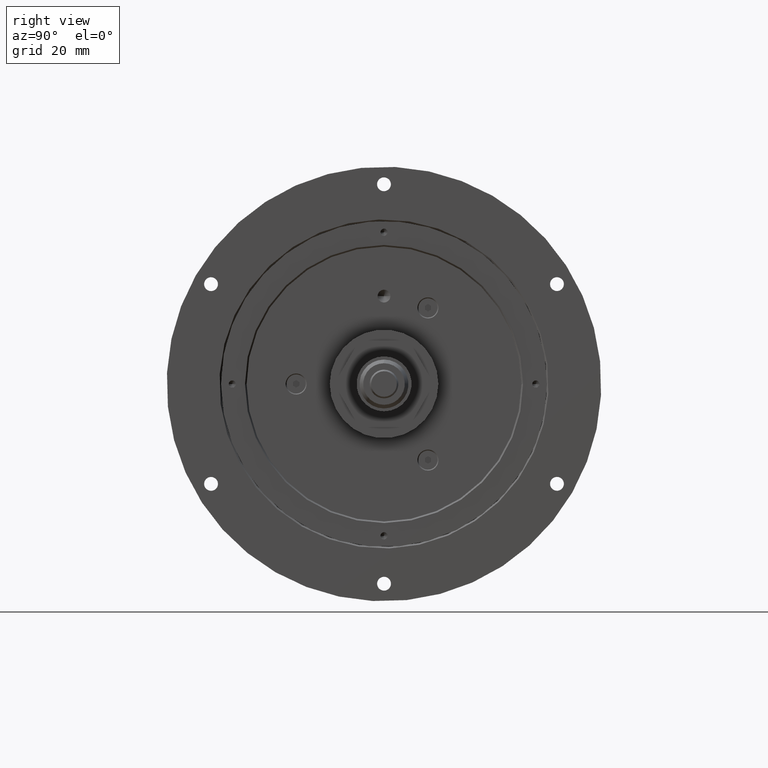
[diagram: clean part render]
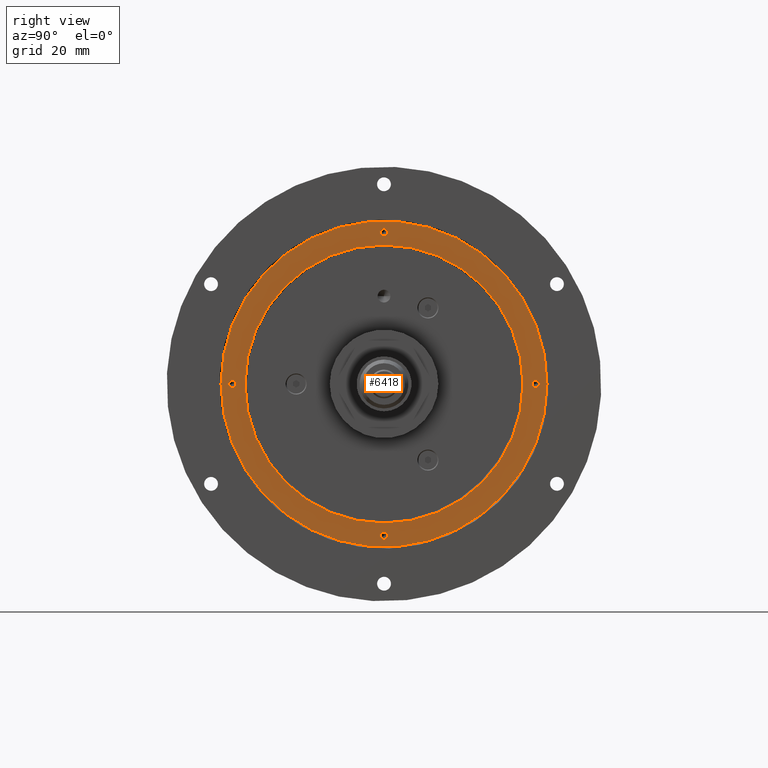
[diagram: same view with one face highlighted and labeled with its STEP entity id]
A machine part, right view. The second image highlights one B-rep face of the part: STEP entity #6418.
In plain terms, the highlighted planar face has unit normal (1, 0, -0).
Its self-contained STEP definition (entity closure, byte-faithful):
#5880=CARTESIAN_POINT('',(2.750000000000000,32.500000000000000,0.0));
#5881=VERTEX_POINT('',#5880);
#5890=CARTESIAN_POINT('',(2.750000000000012,-54.500000000000000,-5.327038E-015));
#5891=VERTEX_POINT('',#5890);
#5892=CARTESIAN_POINT('',(2.750000000000005,-11.0,0.0));
#5893=DIRECTION('',(1.0,0.0,0.0));
#5894=DIRECTION('',(0.0,1.0,0.0));
#5895=AXIS2_PLACEMENT_3D('',#5892,#5893,#5894);
#5896=CIRCLE('',#5895,43.500000000000000);
#5897=EDGE_CURVE('',#5881,#5891,#5896,.T.);
#5922=CARTESIAN_POINT('',(2.750000000000000,40.0,0.0));
#5923=VERTEX_POINT('',#5922);
#5932=CARTESIAN_POINT('',(2.750000000000012,-62.0,-6.245492E-015));
#5933=VERTEX_POINT('',#5932);
#5934=CARTESIAN_POINT('',(2.750000000000006,-11.0,0.0));
#5935=DIRECTION('',(1.0,0.0,0.0));
#5936=DIRECTION('',(0.0,1.0,0.0));
#5937=AXIS2_PLACEMENT_3D('',#5934,#5935,#5936);
#5938=CIRCLE('',#5937,51.0);
#5939=EDGE_CURVE('',#5933,#5923,#5938,.T.);
#5964=CARTESIAN_POINT('',(2.750000000000021,-10.999999999999993,46.400000000349998));
#5965=VERTEX_POINT('',#5964);
#5974=CARTESIAN_POINT('',(2.750000000000005,-10.999999999999993,48.599999999650002));
#5975=VERTEX_POINT('',#5974);
#5976=CARTESIAN_POINT('',(2.750000000000005,-10.999999999999993,47.500000000000000));
#5977=DIRECTION('',(-1.0,0.0,0.0));
#5978=DIRECTION('',(0.0,0.0,-1.0));
#5979=AXIS2_PLACEMENT_3D('',#5976,#5977,#5978);
#5980=CIRCLE('',#5979,1.099999999650000);
#5981=EDGE_CURVE('',#5975,#5965,#5980,.T.);
#6029=CARTESIAN_POINT('',(2.750000000000016,35.400000000349998,-3.620067E-015));
#6030=VERTEX_POINT('',#6029);
#6039=CARTESIAN_POINT('',(2.750000000000000,37.599999999650002,-3.620067E-015));
#6040=VERTEX_POINT('',#6039);
#6041=CARTESIAN_POINT('',(2.750000000000000,36.500000000000000,-3.552714E-015));
#6042=DIRECTION('',(-1.0,0.0,0.0));
#6043=DIRECTION('',(0.0,-1.0,0.0));
#6044=AXIS2_PLACEMENT_3D('',#6041,#6042,#6043);
#6045=CIRCLE('',#6044,1.099999999650000);
#6046=EDGE_CURVE('',#6040,#6030,#6045,.T.);
#6094=CARTESIAN_POINT('',(2.750000000000021,-11.000000000000002,-46.400000000349998));
#6095=VERTEX_POINT('',#6094);
#6104=CARTESIAN_POINT('',(2.750000000000005,-11.000000000000002,-48.599999999650002));
#6105=VERTEX_POINT('',#6104);
#6106=CARTESIAN_POINT('',(2.750000000000005,-11.000000000000002,-47.500000000000000));
#6107=DIRECTION('',(-1.0,0.0,0.0));
#6108=DIRECTION('',(0.0,0.0,1.0));
#6109=AXIS2_PLACEMENT_3D('',#6106,#6107,#6108);
#6110=CIRCLE('',#6109,1.099999999650000);
#6111=EDGE_CURVE('',#6105,#6095,#6110,.T.);
#6159=CARTESIAN_POINT('',(2.750000000000027,-57.400000000349998,-1.574297E-015));
#6160=VERTEX_POINT('',#6159);
#6169=CARTESIAN_POINT('',(2.750000000000000,-59.599999999650002,-1.843710E-015));
#6170=VERTEX_POINT('',#6169);
#6171=CARTESIAN_POINT('',(2.750000000000000,-58.500000000000000,-1.776357E-015));
#6172=DIRECTION('',(-1.0,0.0,0.0));
#6173=DIRECTION('',(0.0,1.0,0.0));
#6174=AXIS2_PLACEMENT_3D('',#6171,#6172,#6173);
#6175=CIRCLE('',#6174,1.099999999650000);
#6176=EDGE_CURVE('',#6170,#6160,#6175,.T.);
#6244=CARTESIAN_POINT('',(2.750000000000000,-58.500000000000000,-1.776357E-015));
#6245=DIRECTION('',(-1.0,0.0,0.0));
#6246=DIRECTION('',(0.0,1.0,0.0));
#6247=AXIS2_PLACEMENT_3D('',#6244,#6245,#6246);
#6248=CIRCLE('',#6247,1.099999999650000);
#6249=EDGE_CURVE('',#6160,#6170,#6248,.T.);
#6279=CARTESIAN_POINT('',(2.750000000000005,-11.000000000000002,-47.500000000000000));
#6280=DIRECTION('',(-1.0,0.0,0.0));
#6281=DIRECTION('',(0.0,0.0,1.0));
#6282=AXIS2_PLACEMENT_3D('',#6279,#6280,#6281);
#6283=CIRCLE('',#6282,1.099999999650000);
#6284=EDGE_CURVE('',#6095,#6105,#6283,.T.);
#6314=CARTESIAN_POINT('',(2.750000000000000,36.500000000000000,-3.552714E-015));
#6315=DIRECTION('',(-1.0,0.0,0.0));
#6316=DIRECTION('',(0.0,-1.0,0.0));
#6317=AXIS2_PLACEMENT_3D('',#6314,#6315,#6316);
#6318=CIRCLE('',#6317,1.099999999650000);
#6319=EDGE_CURVE('',#6030,#6040,#6318,.T.);
#6349=CARTESIAN_POINT('',(2.750000000000005,-10.999999999999993,47.500000000000000));
#6350=DIRECTION('',(-1.0,0.0,0.0));
#6351=DIRECTION('',(0.0,0.0,-1.0));
#6352=AXIS2_PLACEMENT_3D('',#6349,#6350,#6351);
#6353=CIRCLE('',#6352,1.099999999650000);
#6354=EDGE_CURVE('',#5965,#5975,#6353,.T.);
#6373=CARTESIAN_POINT('',(2.750000000000006,-11.0,0.0));
#6374=DIRECTION('',(1.0,0.0,0.0));
#6375=DIRECTION('',(0.0,1.0,0.0));
#6376=AXIS2_PLACEMENT_3D('',#6373,#6374,#6375);
#6377=CIRCLE('',#6376,51.0);
#6378=EDGE_CURVE('',#5923,#5933,#6377,.T.);
#6383=CARTESIAN_POINT('',(2.750000000000000,38.250000000000000,0.0));
#6384=DIRECTION('',(1.0,0.0,0.0));
#6385=DIRECTION('',(0.0,0.0,-1.0));
#6386=AXIS2_PLACEMENT_3D('',#6383,#6384,#6385);
#6387=PLANE('',#6386);
#6388=ORIENTED_EDGE('',*,*,#6378,.T.);
#6389=ORIENTED_EDGE('',*,*,#5939,.T.);
#6390=EDGE_LOOP('',(#6388,#6389));
#6391=FACE_OUTER_BOUND('',#6390,.T.);
#6392=ORIENTED_EDGE('',*,*,#6249,.T.);
#6393=ORIENTED_EDGE('',*,*,#6176,.T.);
#6394=EDGE_LOOP('',(#6392,#6393));
#6395=FACE_BOUND('',#6394,.T.);
#6396=ORIENTED_EDGE('',*,*,#6284,.T.);
#6397=ORIENTED_EDGE('',*,*,#6111,.T.);
#6398=EDGE_LOOP('',(#6396,#6397));
#6399=FACE_BOUND('',#6398,.T.);
#6400=ORIENTED_EDGE('',*,*,#6319,.T.);
#6401=ORIENTED_EDGE('',*,*,#6046,.T.);
#6402=EDGE_LOOP('',(#6400,#6401));
#6403=FACE_BOUND('',#6402,.T.);
#6404=ORIENTED_EDGE('',*,*,#6354,.T.);
#6405=ORIENTED_EDGE('',*,*,#5981,.T.);
#6406=EDGE_LOOP('',(#6404,#6405));
#6407=FACE_BOUND('',#6406,.T.);
#6408=ORIENTED_EDGE('',*,*,#5897,.F.);
#6409=CARTESIAN_POINT('',(2.750000000000005,-11.0,0.0));
#6410=DIRECTION('',(1.0,0.0,0.0));
#6411=DIRECTION('',(0.0,1.0,0.0));
#6412=AXIS2_PLACEMENT_3D('',#6409,#6410,#6411);
#6413=CIRCLE('',#6412,43.500000000000000);
#6414=EDGE_CURVE('',#5891,#5881,#6413,.T.);
#6415=ORIENTED_EDGE('',*,*,#6414,.F.);
#6416=EDGE_LOOP('',(#6408,#6415));
#6417=FACE_BOUND('',#6416,.T.);
#6418=ADVANCED_FACE('',(#6391,#6395,#6399,#6403,#6407,#6417),#6387,.T.);